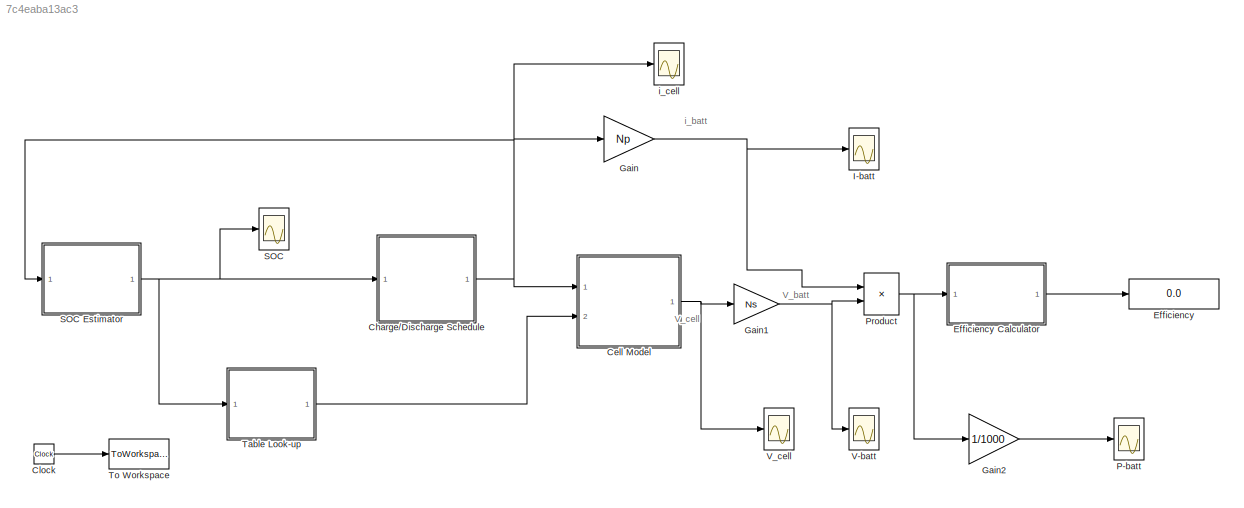
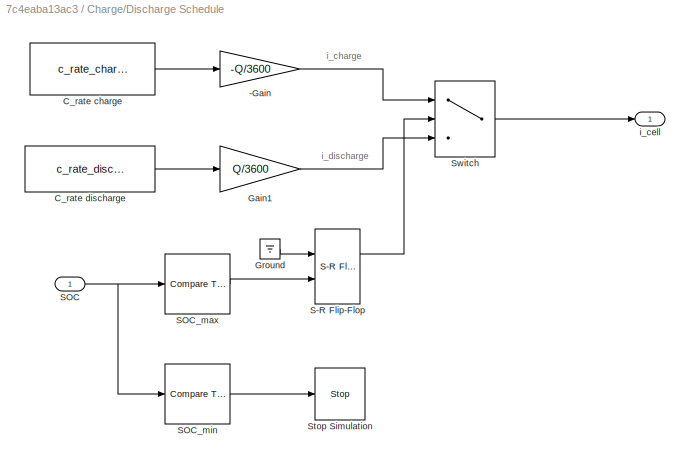
MODEL slx_7c4eaba13ac3
KIND model
CONFIG AbsTol = auto
CONFIG EnableMultiTasking = off
CONFIG FixedStep = auto
CONFIG MaxStep = auto
CONFIG MinStep = auto
CONFIG RelTol = 1e-3
CONFIG SampleTimeConstraint = Unconstrained
CONFIG Solver = VariableStepAuto
CONFIG SolverName = VariableStepAuto
CONFIG StartTime = 0.0
CONFIG StopTime = inf
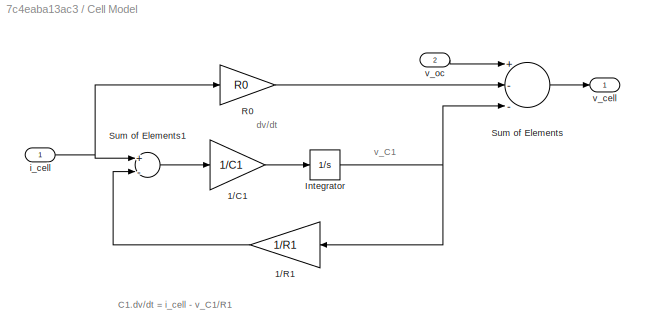
BLOCK [SubSystem] Cell Model
  AncestorBlock = Project4_lib_2015b/Cell Model
  Ports = [2, 1]
  RequestExecContextInheritance = off
  Variant = off
BLOCK [Gain] Cell Model/1//C1
  Gain = 1/C1
  OutDataTypeStr = Inherit: Inherit via internal rule
  ParamDataTypeStr = Inherit: Inherit via internal rule
  SaturateOnIntegerOverflow = off
BLOCK [Gain] Cell Model/1//R1
  Gain = 1/R1
  OutDataTypeStr = Inherit: Inherit via internal rule
  ParamDataTypeStr = Inherit: Inherit via internal rule
  SaturateOnIntegerOverflow = off
BLOCK [Integrator] Cell Model/Integrator
  Ports = [1, 1]
BLOCK [Gain] Cell Model/R0
  Gain = R0
  OutDataTypeStr = Inherit: Inherit via internal rule
  ParamDataTypeStr = Inherit: Inherit via internal rule
  SaturateOnIntegerOverflow = off
BLOCK [Sum] Cell Model/Sum of Elements
  InputSameDT = off
  Inputs = +--
  OutDataTypeStr = Inherit: Inherit via internal rule
  Ports = [3, 1]
  SaturateOnIntegerOverflow = off
BLOCK [Sum] Cell Model/Sum of Elements1
  InputSameDT = off
  Inputs = +-
  OutDataTypeStr = Inherit: Inherit via internal rule
  Ports = [2, 1]
  SaturateOnIntegerOverflow = off
BLOCK [Inport] Cell Model/i_cell
  IconDisplay = Port number
BLOCK [Outport] Cell Model/v_cell
  IconDisplay = Port number
BLOCK [Inport] Cell Model/v_oc 
  IconDisplay = Port number
  Port = 2
BLOCK [SubSystem] Charge//Discharge Schedule
  AncestorBlock = Project4_lib_2015b/Charge//Discharge Schedule
  Ports = [1, 1]
  RequestExecContextInheritance = off
  Variant = off
BLOCK [Gain] Charge//Discharge Schedule/-Gain
  Gain = -Q/3600
  OutDataTypeStr = Inherit: Inherit via internal rule
  ParamDataTypeStr = Inherit: Inherit via internal rule
  SaturateOnIntegerOverflow = off
BLOCK [Constant] Charge//Discharge Schedule/C_rate charge
  Value = c_rate_charge
BLOCK [Constant] Charge//Discharge Schedule/C_rate discharge
  Value = c_rate_discharge
BLOCK [Gain] Charge//Discharge Schedule/Gain1
  Gain = Q/3600
  OutDataTypeStr = Inherit: Inherit via internal rule
  ParamDataTypeStr = Inherit: Inherit via internal rule
  SaturateOnIntegerOverflow = off
BLOCK [Ground] Charge//Discharge Schedule/Ground
BLOCK [Reference] Charge//Discharge Schedule/S-R Flip-Flop  REF=simulink_extras/Flip Flops/S-R
Flip-Flop
  Ports = [2, 2]
  SourceBlock = simulink_extras/Flip Flops/S-R\nFlip-Flop
  SourceProductBaseCode = SL
  SourceProductName = Simulink
  SourceType = SRFlipFlop
BLOCK [Inport] Charge//Discharge Schedule/SOC
  IconDisplay = Port number
BLOCK [Reference] Charge//Discharge Schedule/SOC_max   REF=simulink/Logic and Bit
Operations/Compare
To Constant
  Ports = [1, 1]
  SourceBlock = simulink/Logic and Bit\nOperations/Compare\nTo Constant
  SourceProductBaseCode = SL
  SourceProductName = Simulink
  SourceType = Compare To Constant
BLOCK [Reference] Charge//Discharge Schedule/SOC_min  REF=simulink/Logic and Bit
Operations/Compare
To Constant
  Ports = [1, 1]
  SourceBlock = simulink/Logic and Bit\nOperations/Compare\nTo Constant
  SourceProductBaseCode = SL
  SourceProductName = Simulink
  SourceType = Compare To Constant
BLOCK [Stop] Charge//Discharge Schedule/Stop Simulation
BLOCK [Switch] Charge//Discharge Schedule/Switch
  Criteria = u2 > Threshold
  InputSameDT = off
  SaturateOnIntegerOverflow = off
BLOCK [Outport] Charge//Discharge Schedule/i_cell 
  IconDisplay = Port number
BLOCK [Clock] Clock
BLOCK [Display] Efficiency
  Decimation = 1
  Ports = [1]
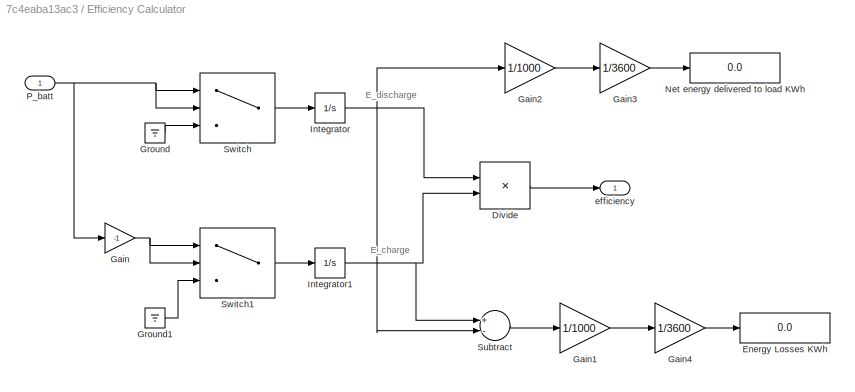
BLOCK [SubSystem] Efficiency Calculator
  AncestorBlock = Project4_lib_2015b/Efficiency Calculator
  Ports = [1, 1]
  RequestExecContextInheritance = off
  Variant = off
BLOCK [Product] Efficiency Calculator/Divide
  InputSameDT = off
  Inputs = */
  OutDataTypeStr = Inherit: Inherit via internal rule
  Ports = [2, 1]
  RndMeth = Floor
  SaturateOnIntegerOverflow = off
BLOCK [Display] Efficiency Calculator/Energy Losses KWh
  Decimation = 1
  Ports = [1]
BLOCK [Gain] Efficiency Calculator/Gain
  Gain = -1
  OutDataTypeStr = Inherit: Inherit via internal rule
  ParamDataTypeStr = Inherit: Inherit via internal rule
  SaturateOnIntegerOverflow = off
BLOCK [Gain] Efficiency Calculator/Gain1
  Gain = 1/1000
  OutDataTypeStr = Inherit: Inherit via internal rule
  ParamDataTypeStr = Inherit: Inherit via internal rule
  SaturateOnIntegerOverflow = off
BLOCK [Gain] Efficiency Calculator/Gain2
  Gain = 1/1000
  OutDataTypeStr = Inherit: Inherit via internal rule
  ParamDataTypeStr = Inherit: Inherit via internal rule
  SaturateOnIntegerOverflow = off
BLOCK [Gain] Efficiency Calculator/Gain3
  Gain = 1/3600
  OutDataTypeStr = Inherit: Inherit via internal rule
  ParamDataTypeStr = Inherit: Inherit via internal rule
  SaturateOnIntegerOverflow = off
BLOCK [Gain] Efficiency Calculator/Gain4
  Gain = 1/3600
  OutDataTypeStr = Inherit: Inherit via internal rule
  ParamDataTypeStr = Inherit: Inherit via internal rule
  SaturateOnIntegerOverflow = off
BLOCK [Ground] Efficiency Calculator/Ground
BLOCK [Ground] Efficiency Calculator/Ground1
BLOCK [Integrator] Efficiency Calculator/Integrator
  Ports = [1, 1]
BLOCK [Integrator] Efficiency Calculator/Integrator1
  Ports = [1, 1]
BLOCK [Display] Efficiency Calculator/Net energy delivered to load KWh
  Decimation = 1
  Ports = [1]
BLOCK [Inport] Efficiency Calculator/P_batt
  IconDisplay = Port number
BLOCK [Sum] Efficiency Calculator/Subtract
  InputSameDT = off
  Inputs = +-
  OutDataTypeStr = Inherit: Inherit via internal rule
  Ports = [2, 1]
  SaturateOnIntegerOverflow = off
BLOCK [Switch] Efficiency Calculator/Switch
  InputSameDT = off
  SaturateOnIntegerOverflow = off
BLOCK [Switch] Efficiency Calculator/Switch1
  InputSameDT = off
  SaturateOnIntegerOverflow = off
BLOCK [Outport] Efficiency Calculator/efficiency
  IconDisplay = Port number
BLOCK [Gain] Gain
  Gain = Np
  OutDataTypeStr = Inherit: Inherit via internal rule
  ParamDataTypeStr = Inherit: Inherit via internal rule
  SaturateOnIntegerOverflow = off
BLOCK [Gain] Gain1
  Gain = Ns
  OutDataTypeStr = Inherit: Inherit via internal rule
  ParamDataTypeStr = Inherit: Inherit via internal rule
  SaturateOnIntegerOverflow = off
BLOCK [Gain] Gain2
  Gain = 1/1000
  OutDataTypeStr = Inherit: Inherit via internal rule
  ParamDataTypeStr = Inherit: Inherit via internal rule
  SaturateOnIntegerOverflow = off
BLOCK [Scope] I-batt
  NumInputPorts = 1
  Ports = [1]
  ScopeSpecificationString = Simulink.scopes.TimeScopeBlockCfg('CurrentConfiguration', extmgr.ConfigurationSet(extmgr.Configuration('Core','General UI',true),extmgr.Configuration('Core','Source UI',true),extmgr.Configuration('Sources','WiredSimulink',true,'DataLoggingVariableName','ibatt','DataLogging',true,'DataLoggingSaveFormat','Structure'),extmgr.Configuration('Visuals','Time Domain',true,'SerializedDisplays',{struct('Min...<+1519ch>
BLOCK [Scope] P-batt
  NumInputPorts = 1
  Ports = [1]
  ScopeSpecificationString = Simulink.scopes.TimeScopeBlockCfg('CurrentConfiguration', extmgr.ConfigurationSet(extmgr.Configuration('Core','General UI',true),extmgr.Configuration('Core','Source UI',true),extmgr.Configuration('Sources','WiredSimulink',true,'DataLoggingVariableName','pbatt','DataLogging',true,'DataLoggingSaveFormat','Structure'),extmgr.Configuration('Visuals','Time Domain',true,'SerializedDisplays',{struct('Min...<+1523ch>
BLOCK [Product] Product
  InputSameDT = off
  OutDataTypeStr = Inherit: Inherit via internal rule
  Ports = [2, 1]
  RndMeth = Floor
  SaturateOnIntegerOverflow = off
BLOCK [Scope] SOC
  NumInputPorts = 1
  Ports = [1]
  ScopeSpecificationString = Simulink.scopes.TimeScopeBlockCfg('CurrentConfiguration', extmgr.ConfigurationSet(extmgr.Configuration('Core','General UI',true),extmgr.Configuration('Core','Source UI',true),extmgr.Configuration('Sources','WiredSimulink',true,'DataLogging',true,'DataLoggingVariableName','soc','DataLoggingSaveFormat','Structure'),extmgr.Configuration('Visuals','Time Domain',true,'SerializedDisplays',{struct('MinYL...<+1513ch>
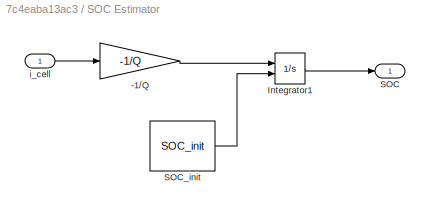
BLOCK [SubSystem] SOC Estimator
  AncestorBlock = Project4_lib_2015b/SOC Estimator
  Ports = [1, 1]
  RequestExecContextInheritance = off
  Variant = off
BLOCK [Gain] SOC Estimator/-1//Q
  Gain = -1/Q
  OutDataTypeStr = Inherit: Inherit via internal rule
  ParamDataTypeStr = Inherit: Inherit via internal rule
  SaturateOnIntegerOverflow = off
BLOCK [Integrator] SOC Estimator/Integrator1
  InitialConditionSource = external
  Ports = [2, 1]
BLOCK [Outport] SOC Estimator/SOC
  IconDisplay = Port number
BLOCK [Constant] SOC Estimator/SOC_init
  Value = SOC_init
BLOCK [Inport] SOC Estimator/i_cell
  IconDisplay = Port number
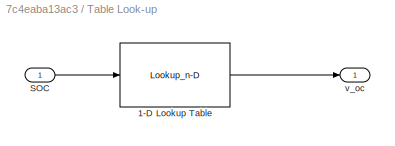
BLOCK [SubSystem] Table Look-up
  AncestorBlock = Project4_lib_2015b/Table Look-up
  Ports = [1, 1]
  RequestExecContextInheritance = off
  Variant = off
BLOCK [Lookup_n-D] Table Look-up/1-D Lookup Table
  BreakpointsForDimension1 = [0 0.1 0.25 0.5 0.75 0.9 1]
  NumberOfTableDimensions = 1
  Ports = [1, 1]
  RndMeth = Simplest
  Table = [ 3.51  3.57  3.63  3.71  3.93  4.08  4.19]
BLOCK [Inport] Table Look-up/SOC
  IconDisplay = Port number
BLOCK [Outport] Table Look-up/v_oc
  IconDisplay = Port number
BLOCK [ToWorkspace] To Workspace
  FixptAsFi = on
  MaxDataPoints = inf
  Ports = [1]
  SampleTime = -1
  Save2DSignal = 3-D array (concatenate along third dimension)
  SaveFormat = Timeseries
  VariableName = time
BLOCK [Scope] V-batt
  NumInputPorts = 1
  Ports = [1]
  ScopeSpecificationString = Simulink.scopes.TimeScopeBlockCfg('CurrentConfiguration', extmgr.ConfigurationSet(extmgr.Configuration('Core','General UI',true),extmgr.Configuration('Core','Source UI',true),extmgr.Configuration('Sources','WiredSimulink',true,'DataLoggingVariableName','vbatt','DataLogging',true,'DataLoggingSaveFormat','Structure'),extmgr.Configuration('Visuals','Time Domain',true,'SerializedDisplays',{struct('Min...<+1540ch>
BLOCK [Scope] V_cell
  NumInputPorts = 1
  Ports = [1]
  ScopeSpecificationString = Simulink.scopes.TimeScopeBlockCfg('CurrentConfiguration', extmgr.ConfigurationSet(extmgr.Configuration('Core','General UI',true),extmgr.Configuration('Core','Source UI',true),extmgr.Configuration('Sources','WiredSimulink',true,'DataLoggingVariableName','ScopeData1','DataLogging',true,'DataLoggingSaveFormat','Structure'),extmgr.Configuration('Visuals','Time Domain',true,'SerializedDisplays',{struct...<+1515ch>
BLOCK [Scope] i_cell
  NumInputPorts = 1
  Ports = [1]
  ScopeSpecificationString = Simulink.scopes.TimeScopeBlockCfg('CurrentConfiguration', extmgr.ConfigurationSet(extmgr.Configuration('Core','General UI',true),extmgr.Configuration('Core','Source UI',true),extmgr.Configuration('Sources','WiredSimulink',true,'DataLoggingVariableName','ScopeData1'),extmgr.Configuration('Visuals','Time Domain',true,'SerializedDisplays',{struct('MinYLimReal','52.00000','MaxYLimReal','72.00000','YLa...<+1468ch>
ANNOTATION (root): V_batt
ANNOTATION (root): V_cell
ANNOTATION (root): i_batt
ANNOTATION Cell Model: C1.dv/dt = i_cell - v_C1/R1
ANNOTATION Cell Model: dv/dt
ANNOTATION Cell Model: v_C1
ANNOTATION Charge//Discharge Schedule: i_charge
ANNOTATION Charge//Discharge Schedule: i_discharge
ANNOTATION Efficiency Calculator: E_charge
ANNOTATION Efficiency Calculator: E_discharge
NET Cell Model:1 -> Gain1:1, V_cell:1
NET Charge//Discharge Schedule:1 -> Cell Model:1, Gain:1, SOC Estimator:1, i_cell:1
LINE Clock:1 -> To Workspace:1
LINE Efficiency Calculator:1 -> Efficiency:1
NET Gain1:1 -> Product:2, V-batt:1
LINE Gain2:1 -> P-batt:1
NET Gain:1 -> I-batt:1, Product:1
NET Product:1 -> Efficiency Calculator:1, Gain2:1
NET SOC Estimator:1 -> Charge//Discharge Schedule:1, SOC:1, Table Look-up:1
LINE Table Look-up:1 -> Cell Model:2
note: NET lines group one-source signal fan-out (src -> all destinations, sorted); 1:1 wires keep LINE
